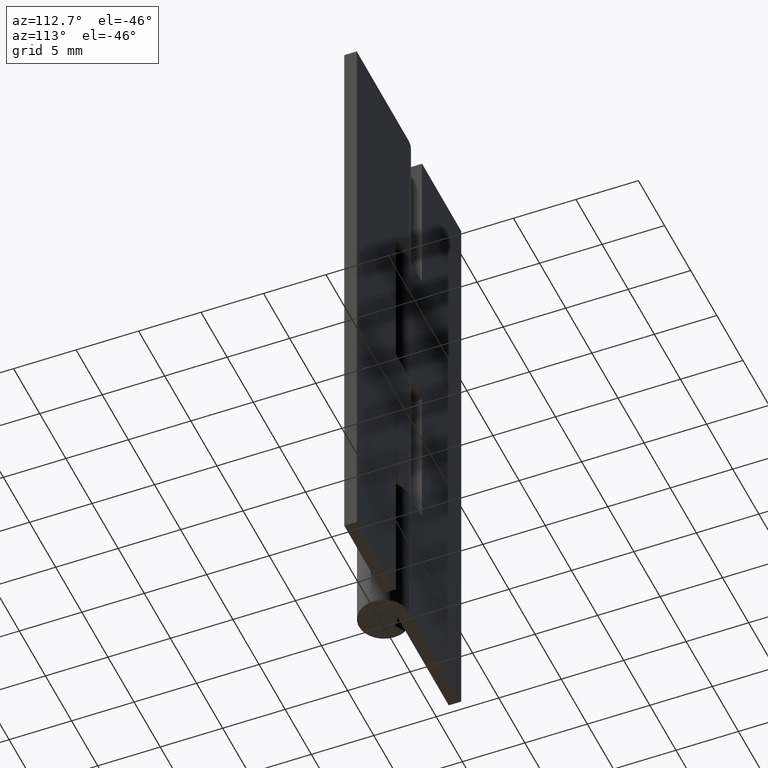
[diagram: clean part render]
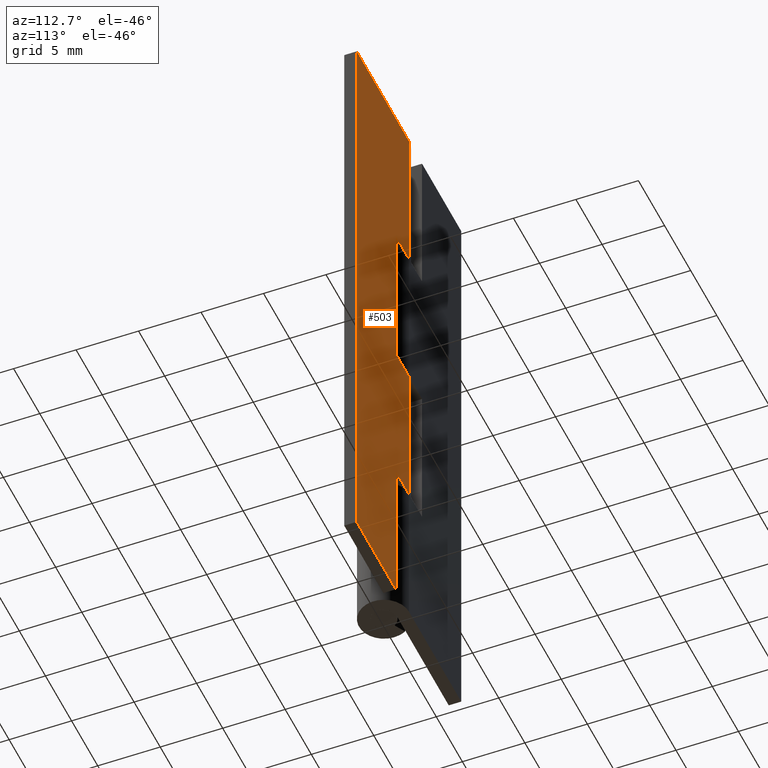
[diagram: same view with one face highlighted and labeled with its STEP entity id]
A machine part, auxiliary view. The second image highlights one B-rep face of the part: STEP entity #503.
In plain terms, the highlighted face is a freeform B-spline surface patch.
Its self-contained STEP definition (entity closure, byte-faithful):
#49=CARTESIAN_POINT('',(0.0,2.0,37.500000000000000));
#50=VERTEX_POINT('',#49);
#51=CARTESIAN_POINT('',(2.500000000000000,2.0,37.500000000000000));
#52=VERTEX_POINT('',#51);
#53=CARTESIAN_POINT('',(0.0,2.0,37.500000000000000));
#54=CARTESIAN_POINT('',(2.500000000000000,2.0,37.500000000000000));
#55=QUASI_UNIFORM_CURVE('',1,(#53,#54),.UNSPECIFIED.,.F.,.U.);
#56=EDGE_CURVE('',#50,#52,#55,.T.);
#129=CARTESIAN_POINT('',(0.0,2.0,25.0));
#130=VERTEX_POINT('',#129);
#185=CARTESIAN_POINT('',(2.500000000000000,2.0,25.0));
#186=VERTEX_POINT('',#185);
#192=CARTESIAN_POINT('',(2.500000000000000,2.0,25.0));
#193=CARTESIAN_POINT('',(0.0,2.0,25.0));
#194=QUASI_UNIFORM_CURVE('',1,(#192,#193),.UNSPECIFIED.,.F.,.U.);
#195=EDGE_CURVE('',#186,#130,#194,.T.);
#206=CARTESIAN_POINT('',(2.500000000000000,2.0,37.500000000000000));
#207=CARTESIAN_POINT('',(2.500000000000000,2.0,25.0));
#208=QUASI_UNIFORM_CURVE('',1,(#206,#207),.UNSPECIFIED.,.F.,.U.);
#209=EDGE_CURVE('',#52,#186,#208,.T.);
#227=CARTESIAN_POINT('',(2.500000000000000,2.0,12.500000000000000));
#228=VERTEX_POINT('',#227);
#234=CARTESIAN_POINT('',(2.500000000000000,2.0,0.0));
#235=VERTEX_POINT('',#234);
#236=CARTESIAN_POINT('',(2.500000000000000,2.0,12.500000000000000));
#237=CARTESIAN_POINT('',(2.500000000000000,2.0,0.0));
#238=QUASI_UNIFORM_CURVE('',1,(#236,#237),.UNSPECIFIED.,.F.,.U.);
#239=EDGE_CURVE('',#228,#235,#238,.T.);
#261=CARTESIAN_POINT('',(0.0,2.0,12.500000000000000));
#262=VERTEX_POINT('',#261);
#263=CARTESIAN_POINT('',(0.0,2.0,12.500000000000000));
#264=CARTESIAN_POINT('',(2.500000000000000,2.0,12.500000000000000));
#265=QUASI_UNIFORM_CURVE('',1,(#263,#264),.UNSPECIFIED.,.F.,.U.);
#266=EDGE_CURVE('',#262,#228,#265,.T.);
#339=CARTESIAN_POINT('',(10.0,2.0,0.0));
#340=VERTEX_POINT('',#339);
#341=CARTESIAN_POINT('',(10.0,2.0,0.0));
#342=CARTESIAN_POINT('',(2.500000000000000,2.0,0.0));
#343=QUASI_UNIFORM_CURVE('',1,(#341,#342),.UNSPECIFIED.,.F.,.U.);
#344=EDGE_CURVE('',#340,#235,#343,.T.);
#389=CARTESIAN_POINT('',(10.0,2.0,50.0));
#390=VERTEX_POINT('',#389);
#396=CARTESIAN_POINT('',(0.0,2.0,50.0));
#397=VERTEX_POINT('',#396);
#398=CARTESIAN_POINT('',(10.0,2.0,50.0));
#399=CARTESIAN_POINT('',(0.0,2.0,50.0));
#400=QUASI_UNIFORM_CURVE('',1,(#398,#399),.UNSPECIFIED.,.F.,.U.);
#401=EDGE_CURVE('',#390,#397,#400,.T.);
#468=CARTESIAN_POINT('',(10.0,2.0,50.0));
#469=CARTESIAN_POINT('',(10.0,2.0,0.0));
#470=QUASI_UNIFORM_CURVE('',1,(#468,#469),.UNSPECIFIED.,.F.,.U.);
#471=EDGE_CURVE('',#390,#340,#470,.T.);
#478=CARTESIAN_POINT('',(-0.499499980618060,2.0,52.497499903090286));
#479=CARTESIAN_POINT('',(-0.499499980618060,2.0,-2.497501244194806));
#480=CARTESIAN_POINT('',(10.499500248838959,2.0,52.497499903090301));
#481=CARTESIAN_POINT('',(10.499500248838959,2.0,-2.497501244194806));
#482=B_SPLINE_SURFACE_WITH_KNOTS('',1,1,((#478,#480),(#479,#481)),.UNSPECIFIED.,.F.,.F.,.U.,(2,2),(2,2),(0.0,54.995001147285109),(0.0,10.999000229457019),.UNSPECIFIED.);
#483=CARTESIAN_POINT('',(0.0,2.0,25.0));
#484=CARTESIAN_POINT('',(0.0,2.0,12.500000000000000));
#485=QUASI_UNIFORM_CURVE('',1,(#483,#484),.UNSPECIFIED.,.F.,.U.);
#486=EDGE_CURVE('',#130,#262,#485,.T.);
#487=ORIENTED_EDGE('',*,*,#486,.F.);
#488=ORIENTED_EDGE('',*,*,#195,.F.);
#489=ORIENTED_EDGE('',*,*,#209,.F.);
#490=ORIENTED_EDGE('',*,*,#56,.F.);
#491=CARTESIAN_POINT('',(0.0,2.0,50.0));
#492=CARTESIAN_POINT('',(0.0,2.0,37.500000000000000));
#493=QUASI_UNIFORM_CURVE('',1,(#491,#492),.UNSPECIFIED.,.F.,.U.);
#494=EDGE_CURVE('',#397,#50,#493,.T.);
#495=ORIENTED_EDGE('',*,*,#494,.F.);
#496=ORIENTED_EDGE('',*,*,#401,.F.);
#497=ORIENTED_EDGE('',*,*,#471,.T.);
#498=ORIENTED_EDGE('',*,*,#344,.T.);
#499=ORIENTED_EDGE('',*,*,#239,.F.);
#500=ORIENTED_EDGE('',*,*,#266,.F.);
#501=EDGE_LOOP('',(#487,#488,#489,#490,#495,#496,#497,#498,#499,#500));
#502=FACE_OUTER_BOUND('',#501,.T.);
#503=ADVANCED_FACE('',(#502),#482,.F.);